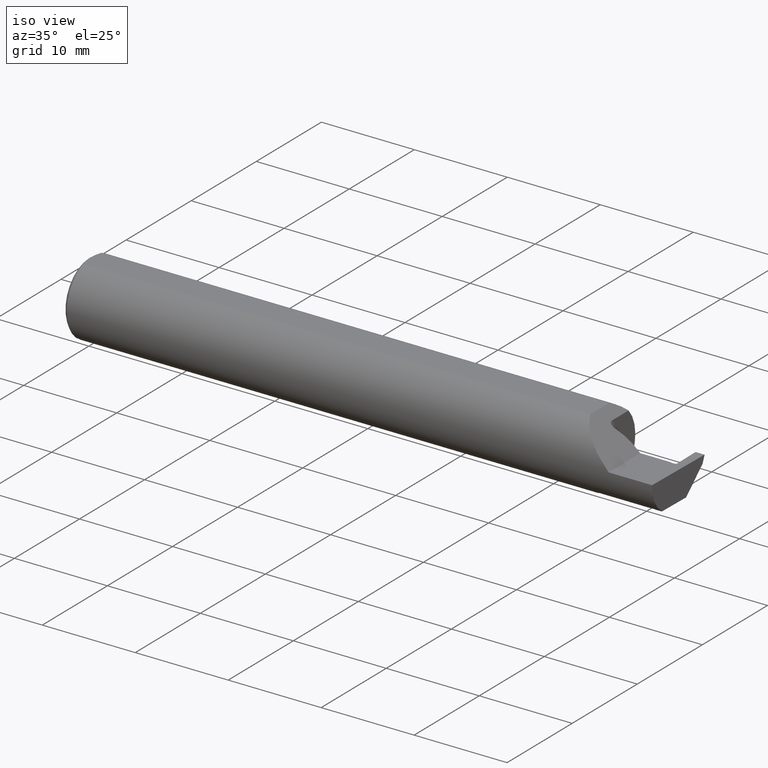
[diagram: clean part render]
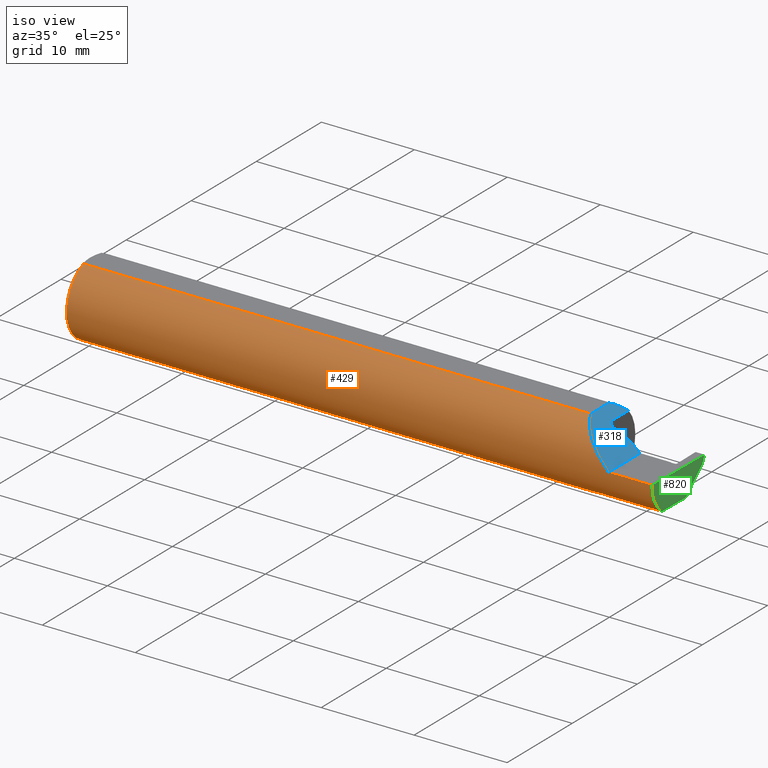
[diagram: same view with three faces highlighted in distinct colors, each labeled with its STEP entity id]
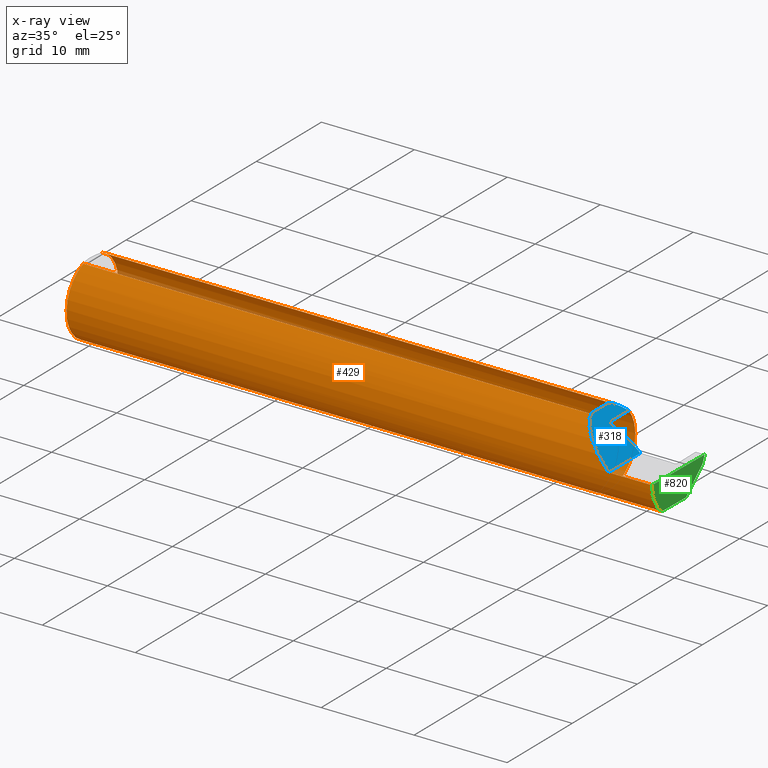
[diagram: x-ray of the same camera — body ghosted, the three highlighted faces saturated]
A machine part, iso view with three faces highlighted in distinct colors.
The next image is the same camera in x-ray (body ghosted, the three faces saturated) — at least one of them is partly hidden behind the body in this view.
Their STEP definitions:

[orange] entity #429 — the highlighted cylindrical surface (partial cylindrical patch) has radius 3.9649 mm, axis along (-1, -0, -0).
#6 =( BOUNDED_CURVE ( )  B_SPLINE_CURVE ( 3, ( #601, #239, #313, #317 ),
 .UNSPECIFIED., .F., .F. ) 
 B_SPLINE_CURVE_WITH_KNOTS ( ( 4, 4 ),
 ( 0.3598816721999159585, 0.8330178286033869117 ),
 .UNSPECIFIED. ) 
 CURVE ( )  GEOMETRIC_REPRESENTATION_ITEM ( )  RATIONAL_B_SPLINE_CURVE ( ( 1.000000000000000000, 0.9814320198864697753, 0.9814320198864697753, 1.000000000000000000 ) ) 
 REPRESENTATION_ITEM ( '' )  );
#13 = LINE ( 'NONE', #296, #246 ) ;
#16 = VERTEX_POINT ( 'NONE', #688 ) ;
#24 = CARTESIAN_POINT ( 'NONE',  ( 2.453282581884050462, -0.09605366783568212996, -0.1230484297883021605 ) ) ;
#26 = EDGE_CURVE ( 'NONE', #522, #341, #13, .T. ) ;
#27 = CIRCLE ( 'NONE', #427, 0.1560999999999999888 ) ;
#30 = B_SPLINE_CURVE_WITH_KNOTS ( 'NONE', 3,
 ( #395, #699, #935, #265, #793, #24, #488, #255, #322, #552 ),
 .UNSPECIFIED., .F., .F.,
 ( 4, 3, 3, 4 ),
 ( 0.000000000000000000, 9.512159278853818574E-05, 0.0002378039862949639675, 0.0003804863840084716435 ),
 .UNSPECIFIED. ) ;
#35 = LINE ( 'NONE', #926, #354 ) ;
#36 = CARTESIAN_POINT ( 'NONE',  ( 0.000000000000000000, 0.000000000000000000, 0.000000000000000000 ) ) ;
#49 = ORIENTED_EDGE ( 'NONE', *, *, #615, .T. ) ;
#52 = VERTEX_POINT ( 'NONE', #760 ) ;
#54 = CARTESIAN_POINT ( 'NONE',  ( 2.229999999999999982, -0.09360841750841744635, -0.1249186702281520206 ) ) ;
#67 =( BOUNDED_CURVE ( )  B_SPLINE_CURVE ( 3, ( #290, #437, #814, #510 ),
 .UNSPECIFIED., .F., .T. ) 
 B_SPLINE_CURVE_WITH_KNOTS ( ( 4, 4 ),
 ( 0.05521439950980804034, 0.9829226100289724100 ),
 .UNSPECIFIED. ) 
 CURVE ( )  GEOMETRIC_REPRESENTATION_ITEM ( )  RATIONAL_B_SPLINE_CURVE ( ( 1.000000000000000000, 0.9295565493311498395, 0.9295565493311498395, 1.000000000000000000 ) ) 
 REPRESENTATION_ITEM ( '' )  );
#90 = CARTESIAN_POINT ( 'NONE',  ( 0.01499999999999999771, 0.05497272050753900657, 0.1460999999999999799 ) ) ;
#93 = CARTESIAN_POINT ( 'NONE',  ( 2.163900000000000823, -0.05497272050753899270, 0.1460999999999999799 ) ) ;
#96 = ORIENTED_EDGE ( 'NONE', *, *, #26, .T. ) ;
#101 = CARTESIAN_POINT ( 'NONE',  ( 2.461870861435892621, -0.09646811579188417640, -0.1227237437389290392 ) ) ;
#108 = VERTEX_POINT ( 'NONE', #863 ) ;
#112 = ORIENTED_EDGE ( 'NONE', *, *, #594, .F. ) ;
#113 = DIRECTION ( 'NONE',  ( -1.000000000000000000, -0.000000000000000000, -0.000000000000000000 ) ) ;
#114 = CYLINDRICAL_SURFACE ( 'NONE', #603, 0.1560999999999999888 ) ;
#124 = CARTESIAN_POINT ( 'NONE',  ( 2.229999999999999982, -0.09360841750841744635, -0.1249186702281520206 ) ) ;
#126 = EDGE_LOOP ( 'NONE', ( #636, #131, #96, #950, #112, #360, #651, #551, #49, #194, #537, #917, #312, #876, #321 ) ) ;
#131 = ORIENTED_EDGE ( 'NONE', *, *, #300, .T. ) ;
#145 = DIRECTION ( 'NONE',  ( -1.000000000000000000, -0.000000000000000000, -0.000000000000000000 ) ) ;
#154 = VECTOR ( 'NONE', #380, 39.37007874015748143 ) ;
#159 = EDGE_CURVE ( 'NONE', #108, #337, #938, .T. ) ;
#164 = DIRECTION ( 'NONE',  ( 1.000000000000000000, 0.000000000000000000, 0.000000000000000000 ) ) ;
#168 = EDGE_CURVE ( 'NONE', #341, #16, #575, .T. ) ;
#174 = VERTEX_POINT ( 'NONE', #197 ) ;
#187 = FACE_OUTER_BOUND ( 'NONE', #126, .T. ) ;
#194 = ORIENTED_EDGE ( 'NONE', *, *, #159, .F. ) ;
#197 = CARTESIAN_POINT ( 'NONE',  ( 2.492408115719126460, -0.09360841750841747411, -0.1249186702281520206 ) ) ;
#203 = CARTESIAN_POINT ( 'NONE',  ( 2.205000000000000071, 0.1155084845368506419, 0.1050000000000006206 ) ) ;
#207 = CARTESIAN_POINT ( 'NONE',  ( 2.205382848617945424, -0.06353102748571685943, -0.1426585117573466455 ) ) ;
#211 = CARTESIAN_POINT ( 'NONE',  ( 2.204999999999998295, -0.05933838711026685753, -0.1444554604868196757 ) ) ;
#239 = CARTESIAN_POINT ( 'NONE',  ( 2.172651720989708490, 0.07823201029329630851, 0.1373482790102923123 ) ) ;
#241 = CARTESIAN_POINT ( 'NONE',  ( 2.310000000000000053, -0.1560999999999999888, 2.326828918379970872E-17 ) ) ;
#246 = VECTOR ( 'NONE', #145, 39.37007874015748143 ) ;
#250 = VERTEX_POINT ( 'NONE', #393 ) ;
#255 = CARTESIAN_POINT ( 'NONE',  ( 2.449544681533677881, -0.09587258477452799410, -0.1231895720696601915 ) ) ;
#256 = CARTESIAN_POINT ( 'NONE',  ( 2.494588929872255001, -0.1561000000000000443, 0.000000000000000000 ) ) ;
#257 = EDGE_CURVE ( 'NONE', #618, #772, #27, .T. ) ;
#265 = CARTESIAN_POINT ( 'NONE',  ( 2.457020500426053911, -0.09623428318624049904, -0.1229071712294707436 ) ) ;
#271 = DIRECTION ( 'NONE',  ( 0.000000000000000000, 0.000000000000000000, -1.000000000000000000 ) ) ;
#280 = CARTESIAN_POINT ( 'NONE',  ( 2.163900000000000823, 0.05497272050753900657, 0.1460999999999999799 ) ) ;
#290 = CARTESIAN_POINT ( 'NONE',  ( 2.492408115719126460, -0.09360841750841747411, -0.1249186702281520206 ) ) ;
#296 = CARTESIAN_POINT ( 'NONE',  ( 3.749399456654646757E-32, -0.1560999999999999888, 3.061616997868384127E-16 ) ) ;
#300 = EDGE_CURVE ( 'NONE', #174, #522, #67, .T. ) ;
#312 = ORIENTED_EDGE ( 'NONE', *, *, #606, .F. ) ;
#313 = CARTESIAN_POINT ( 'NONE',  ( 2.186610915026993229, 0.09879236251423235970, 0.1233890849730072958 ) ) ;
#317 = CARTESIAN_POINT ( 'NONE',  ( 2.205000000000000071, 0.1155084845368506419, 0.1050000000000006206 ) ) ;
#321 = ORIENTED_EDGE ( 'NONE', *, *, #853, .F. ) ;
#322 = CARTESIAN_POINT ( 'NONE',  ( 2.447675737396382001, -0.09578188742118470822, -0.1232601041107730250 ) ) ;
#337 = VERTEX_POINT ( 'NONE', #203 ) ;
#338 = LINE ( 'NONE', #941, #655 ) ;
#341 = VERTEX_POINT ( 'NONE', #742 ) ;
#354 = VECTOR ( 'NONE', #113, 39.37007874015748143 ) ;
#357 = CARTESIAN_POINT ( 'NONE',  ( 2.225298065053173513, -0.09360841750841726594, -0.1249186702281522426 ) ) ;
#358 = CARTESIAN_POINT ( 'NONE',  ( 0.01499999999999999944, 0.000000000000000000, 0.000000000000000000 ) ) ;
#360 = ORIENTED_EDGE ( 'NONE', *, *, #776, .F. ) ;
#380 = DIRECTION ( 'NONE',  ( -1.000000000000000000, -0.000000000000000000, -0.000000000000000000 ) ) ;
#381 = B_SPLINE_CURVE_WITH_KNOTS ( 'NONE', 3,
 ( #474, #798, #398, #783, #101, #706 ),
 .UNSPECIFIED., .F., .F.,
 ( 4, 2, 4 ),
 ( 0.0002236889353495287230, 0.0003060019729275918168, 0.0003883150105056549107 ),
 .UNSPECIFIED. ) ;
#393 = CARTESIAN_POINT ( 'NONE',  ( 2.460758433086303043, -0.09641453430756345699, -0.1227658241297457653 ) ) ;
#395 = CARTESIAN_POINT ( 'NONE',  ( 2.460758433086303043, -0.09641453430756345699, -0.1227658241297457653 ) ) ;
#398 = CARTESIAN_POINT ( 'NONE',  ( 2.464692907515818820, -0.09506543444703732804, -0.1238152809981270669 ) ) ;
#408 = CARTESIAN_POINT ( 'NONE',  ( 2.465920927715513855, -0.09360841750841744635, -0.1249186702281520345 ) ) ;
#409 = CARTESIAN_POINT ( 'NONE',  ( 2.187562140406902333, -0.1178591609371013593, 0.1224378595930983027 ) ) ;
#410 = VERTEX_POINT ( 'NONE', #124 ) ;
#426 = LINE ( 'NONE', #513, #891 ) ;
#427 = AXIS2_PLACEMENT_3D ( 'NONE', #358, #428, #514 ) ;
#428 = DIRECTION ( 'NONE',  ( -1.000000000000000000, -0.000000000000000000, -0.000000000000000000 ) ) ;
#429 = ADVANCED_FACE ( 'NONE', ( #187 ), #114, .T. ) ;
#437 = CARTESIAN_POINT ( 'NONE',  ( 2.492495113650786021, -0.1336908980339254205, -0.09488266708345007017 ) ) ;
#448 = CARTESIAN_POINT ( 'NONE',  ( 2.444421270371394783, -0.09360841750841741860, -0.1249186702281520206 ) ) ;
#474 = CARTESIAN_POINT ( 'NONE',  ( 2.465920927715513855, -0.09360841750841744635, -0.1249186702281520345 ) ) ;
#487 = VERTEX_POINT ( 'NONE', #408 ) ;
#488 = CARTESIAN_POINT ( 'NONE',  ( 2.451413631736417464, -0.09596312630643989705, -0.1231190009279407582 ) ) ;
#499 = CARTESIAN_POINT ( 'NONE',  ( 2.205000000000000515, -0.05502817059483720158, -0.1460791239054557156 ) ) ;
#502 = CARTESIAN_POINT ( 'NONE',  ( 2.444421270371394783, -0.09360841750841741860, -0.1249186702281520206 ) ) ;
#510 = CARTESIAN_POINT ( 'NONE',  ( 2.494588929872255001, -0.1561000000000000443, 0.000000000000000000 ) ) ;
#513 = CARTESIAN_POINT ( 'NONE',  ( 0.000000000000000000, -0.05497272050753900657, 0.1460999999999999799 ) ) ;
#514 = DIRECTION ( 'NONE',  ( 0.000000000000000000, 0.000000000000000000, 1.000000000000000000 ) ) ;
#522 = VERTEX_POINT ( 'NONE', #256 ) ;
#524 = CIRCLE ( 'NONE', #704, 0.1560999999999999888 ) ;
#537 = ORIENTED_EDGE ( 'NONE', *, *, #550, .F. ) ;
#539 = CARTESIAN_POINT ( 'NONE',  ( 2.242809217309687853, -0.1561000000000000165, 0.06719078269031264483 ) ) ;
#547 = DIRECTION ( 'NONE',  ( -1.000000000000000000, -0.000000000000000000, -0.000000000000000000 ) ) ;
#550 = EDGE_CURVE ( 'NONE', #410, #108, #949, .T. ) ;
#551 = ORIENTED_EDGE ( 'NONE', *, *, #731, .F. ) ;
#552 = CARTESIAN_POINT ( 'NONE',  ( 2.445806799314936164, -0.09569103450145266532, -0.1233305960256488032 ) ) ;
#556 = AXIS2_PLACEMENT_3D ( 'NONE', #649, #164, #271 ) ;
#568 = CARTESIAN_POINT ( 'NONE',  ( 0.01499999999999999944, -0.05497272050753900657, 0.1460999999999999799 ) ) ;
#573 = CARTESIAN_POINT ( 'NONE',  ( 2.445806799314936164, -0.09569103450145266532, -0.1233305960256488032 ) ) ;
#575 =( BOUNDED_CURVE ( )  B_SPLINE_CURVE ( 3, ( #241, #539, #409, #93 ),
 .UNSPECIFIED., .F., .F. ) 
 B_SPLINE_CURVE_WITH_KNOTS ( ( 4, 4 ),
 ( 4.712388980384689674, 5.923303634979670385 ),
 .UNSPECIFIED. ) 
 CURVE ( )  GEOMETRIC_REPRESENTATION_ITEM ( )  RATIONAL_B_SPLINE_CURVE ( ( 1.000000000000000000, 0.8814946008038386793, 0.8814946008038386793, 1.000000000000000000 ) ) 
 REPRESENTATION_ITEM ( '' )  );
#594 = EDGE_CURVE ( 'NONE', #807, #16, #426, .T. ) ;
#596 = VERTEX_POINT ( 'NONE', #280 ) ;
#601 = CARTESIAN_POINT ( 'NONE',  ( 2.163900000000000823, 0.05497272050753900657, 0.1460999999999999799 ) ) ;
#603 = AXIS2_PLACEMENT_3D ( 'NONE', #36, #805, #936 ) ;
#606 = EDGE_CURVE ( 'NONE', #52, #859, #963, .T. ) ;
#615 = EDGE_CURVE ( 'NONE', #596, #337, #6, .T. ) ;
#618 = VERTEX_POINT ( 'NONE', #90 ) ;
#636 = ORIENTED_EDGE ( 'NONE', *, *, #928, .F. ) ;
#649 = CARTESIAN_POINT ( 'NONE',  ( 2.205000000000000071, 0.000000000000000000, 0.000000000000000000 ) ) ;
#651 = ORIENTED_EDGE ( 'NONE', *, *, #257, .F. ) ;
#655 = VECTOR ( 'NONE', #547, 39.37007874015748143 ) ;
#660 = CARTESIAN_POINT ( 'NONE',  ( 2.208298581922916171, -0.07564908586346462405, -0.1366096273808739270 ) ) ;
#664 = CARTESIAN_POINT ( 'NONE',  ( 2.207026367118634536, -0.07167964287766651066, -0.1387431844349195920 ) ) ;
#688 = CARTESIAN_POINT ( 'NONE',  ( 2.163900000000000823, -0.05497272050753899270, 0.1460999999999999799 ) ) ;
#699 = CARTESIAN_POINT ( 'NONE',  ( 2.459512452820178385, -0.09635452000985572640, -0.1228129565512181276 ) ) ;
#704 = AXIS2_PLACEMENT_3D ( 'NONE', #867, #778, #720 ) ;
#706 = CARTESIAN_POINT ( 'NONE',  ( 2.460758433086303043, -0.09641453430756345699, -0.1227658241297457653 ) ) ;
#720 = DIRECTION ( 'NONE',  ( 0.000000000000000000, 0.000000000000000000, 1.000000000000000000 ) ) ;
#731 = EDGE_CURVE ( 'NONE', #596, #618, #338, .T. ) ;
#737 = CARTESIAN_POINT ( 'NONE',  ( 2.444883274121979255, -0.09430675028159220263, -0.1243953711434614834 ) ) ;
#742 = CARTESIAN_POINT ( 'NONE',  ( 2.310000000000000053, -0.1560999999999999888, 2.326828918379970872E-17 ) ) ;
#746 = DIRECTION ( 'NONE',  ( 1.000000000000000000, 0.000000000000000000, 0.000000000000000000 ) ) ;
#760 = CARTESIAN_POINT ( 'NONE',  ( 2.445806799314936164, -0.09569103450145266532, -0.1233305960256488032 ) ) ;
#772 = VERTEX_POINT ( 'NONE', #855 ) ;
#776 = EDGE_CURVE ( 'NONE', #772, #807, #524, .T. ) ;
#778 = DIRECTION ( 'NONE',  ( -1.000000000000000000, -0.000000000000000000, -0.000000000000000000 ) ) ;
#783 = CARTESIAN_POINT ( 'NONE',  ( 2.462958620952170552, -0.09612681111944285095, -0.1229930763061729410 ) ) ;
#793 = CARTESIAN_POINT ( 'NONE',  ( 2.455151538110904585, -0.09614405354417178418, -0.1229778195475450392 ) ) ;
#798 = CARTESIAN_POINT ( 'NONE',  ( 2.465372530024500630, -0.09436784564007158482, -0.1243495890372808693 ) ) ;
#805 = DIRECTION ( 'NONE',  ( -1.000000000000000000, -0.000000000000000000, -0.000000000000000000 ) ) ;
#807 = VERTEX_POINT ( 'NONE', #568 ) ;
#809 = CARTESIAN_POINT ( 'NONE',  ( 2.214390565699350777, -0.08631243322371086324, -0.1301077001157307789 ) ) ;
#814 = CARTESIAN_POINT ( 'NONE',  ( 2.493277140361873201, -0.1561000000000000165, -0.05008759057876776416 ) ) ;
#818 = CARTESIAN_POINT ( 'NONE',  ( 2.220963332554101832, -0.09167217634395832815, -0.1263885352504913462 ) ) ;
#829 = EDGE_CURVE ( 'NONE', #250, #52, #30, .T. ) ;
#840 = LINE ( 'NONE', #908, #154 ) ;
#844 = EDGE_CURVE ( 'NONE', #859, #410, #35, .T. ) ;
#853 = EDGE_CURVE ( 'NONE', #487, #250, #381, .T. ) ;
#855 = CARTESIAN_POINT ( 'NONE',  ( 0.01499999999999999944, 0.000000000000000000, -0.1560999999999999888 ) ) ;
#859 = VERTEX_POINT ( 'NONE', #502 ) ;
#863 = CARTESIAN_POINT ( 'NONE',  ( 2.205000000000000515, -0.05502817059483720158, -0.1460791239054557156 ) ) ;
#867 = CARTESIAN_POINT ( 'NONE',  ( 0.01499999999999999944, 0.000000000000000000, 0.000000000000000000 ) ) ;
#876 = ORIENTED_EDGE ( 'NONE', *, *, #829, .F. ) ;
#879 = CARTESIAN_POINT ( 'NONE',  ( 2.445345111343429245, -0.09500096213625149055, -0.1238660165995770779 ) ) ;
#891 = VECTOR ( 'NONE', #746, 39.37007874015748143 ) ;
#896 = CARTESIAN_POINT ( 'NONE',  ( 2.211963077135974842, -0.08291057444783002384, -0.1323284214741863862 ) ) ;
#908 = CARTESIAN_POINT ( 'NONE',  ( 2.343250000000000277, -0.09360841750841747411, -0.1249186702281520206 ) ) ;
#917 = ORIENTED_EDGE ( 'NONE', *, *, #844, .F. ) ;
#926 = CARTESIAN_POINT ( 'NONE',  ( 2.343250000000000277, -0.09360841750841747411, -0.1249186702281520206 ) ) ;
#928 = EDGE_CURVE ( 'NONE', #174, #487, #840, .T. ) ;
#935 = CARTESIAN_POINT ( 'NONE',  ( 2.458266475267615991, -0.09629443627925335369, -0.1228600723520853061 ) ) ;
#936 = DIRECTION ( 'NONE',  ( 0.000000000000000000, 0.000000000000000000, 1.000000000000000000 ) ) ;
#938 = CIRCLE ( 'NONE', #556, 0.1560999999999999888 ) ;
#941 = CARTESIAN_POINT ( 'NONE',  ( 0.000000000000000000, 0.05497272050753900657, 0.1460999999999999799 ) ) ;
#949 = B_SPLINE_CURVE_WITH_KNOTS ( 'NONE', 3,
 ( #54, #357, #818, #809, #896, #660, #664, #207, #211, #499 ),
 .UNSPECIFIED., .F., .F.,
 ( 4, 2, 2, 2, 4 ),
 ( 1.958690481313001990E-07, 0.0003511029445248094400, 0.0007020100200014876444, 0.001052917095478166391, 0.001403824170954845246 ),
 .UNSPECIFIED. ) ;
#950 = ORIENTED_EDGE ( 'NONE', *, *, #168, .T. ) ;
#963 = B_SPLINE_CURVE_WITH_KNOTS ( 'NONE', 3,
 ( #573, #879, #737, #448 ),
 .UNSPECIFIED., .F., .F.,
 ( 4, 4 ),
 ( 5.293749646857445613E-18, 7.520689195611962553E-05 ),
 .UNSPECIFIED. ) ;

[blue] entity #318 — the highlighted planar face has unit normal (-0.7071, 0, -0.7071).
#6 =( BOUNDED_CURVE ( )  B_SPLINE_CURVE ( 3, ( #601, #239, #313, #317 ),
 .UNSPECIFIED., .F., .F. ) 
 B_SPLINE_CURVE_WITH_KNOTS ( ( 4, 4 ),
 ( 0.3598816721999159585, 0.8330178286033869117 ),
 .UNSPECIFIED. ) 
 CURVE ( )  GEOMETRIC_REPRESENTATION_ITEM ( )  RATIONAL_B_SPLINE_CURVE ( ( 1.000000000000000000, 0.9814320198864697753, 0.9814320198864697753, 1.000000000000000000 ) ) 
 REPRESENTATION_ITEM ( '' )  );
#16 = VERTEX_POINT ( 'NONE', #688 ) ;
#17 = DIRECTION ( 'NONE',  ( -0.000000000000000000, 1.000000000000000000, -0.000000000000000000 ) ) ;
#70 = ORIENTED_EDGE ( 'NONE', *, *, #725, .T. ) ;
#87 = DIRECTION ( 'NONE',  ( 0.000000000000000000, -1.000000000000000000, 0.000000000000000000 ) ) ;
#93 = CARTESIAN_POINT ( 'NONE',  ( 2.163900000000000823, -0.05497272050753899270, 0.1460999999999999799 ) ) ;
#95 = EDGE_CURVE ( 'NONE', #337, #238, #806, .T. ) ;
#120 = CARTESIAN_POINT ( 'NONE',  ( 2.216678479843920968, -0.0007234681444185053724, 0.09332152015607918238 ) ) ;
#139 = PLANE ( 'NONE',  #351 ) ;
#144 = EDGE_CURVE ( 'NONE', #238, #751, #149, .T. ) ;
#149 = B_SPLINE_CURVE_WITH_KNOTS ( 'NONE', 3,
 ( #560, #485, #189, #914, #722, #419, #335, #120, #631, #389, #169, #795 ),
 .UNSPECIFIED., .F., .F.,
 ( 4, 2, 2, 2, 2, 4 ),
 ( 0.001292954658829955240, 0.001599031819399232817, 0.001752070399683868136, 0.001905108979968503456, 0.002211186140537772793, 0.002517263301107042130 ),
 .UNSPECIFIED. ) ;
#168 = EDGE_CURVE ( 'NONE', #341, #16, #575, .T. ) ;
#169 = CARTESIAN_POINT ( 'NONE',  ( 2.227522175903073887, 0.004883017638651836190, 0.08247782409692715200 ) ) ;
#185 = ORIENTED_EDGE ( 'NONE', *, *, #615, .F. ) ;
#189 = CARTESIAN_POINT ( 'NONE',  ( 2.205470178925820868, 0.009801298193312112800, 0.1045298210741795603 ) ) ;
#198 = VECTOR ( 'NONE', #87, 39.37007874015748143 ) ;
#203 = CARTESIAN_POINT ( 'NONE',  ( 2.205000000000000071, 0.1155084845368506419, 0.1050000000000006206 ) ) ;
#238 = VERTEX_POINT ( 'NONE', #611 ) ;
#239 = CARTESIAN_POINT ( 'NONE',  ( 2.172651720989708490, 0.07823201029329630851, 0.1373482790102923123 ) ) ;
#241 = CARTESIAN_POINT ( 'NONE',  ( 2.310000000000000053, -0.1560999999999999888, 2.326828918379970872E-17 ) ) ;
#254 = ORIENTED_EDGE ( 'NONE', *, *, #650, .F. ) ;
#280 = CARTESIAN_POINT ( 'NONE',  ( 2.163900000000000823, 0.05497272050753900657, 0.1460999999999999799 ) ) ;
#303 = CARTESIAN_POINT ( 'NONE',  ( 2.310000000000000053, -0.2000000000000000111, 2.326828918379970872E-17 ) ) ;
#311 = CARTESIAN_POINT ( 'NONE',  ( 2.163900000000000823, -0.1561000000000000165, 0.1460999999999999799 ) ) ;
#313 = CARTESIAN_POINT ( 'NONE',  ( 2.186610915026993229, 0.09879236251423235970, 0.1233890849730072958 ) ) ;
#317 = CARTESIAN_POINT ( 'NONE',  ( 2.205000000000000071, 0.1155084845368506419, 0.1050000000000006206 ) ) ;
#318 = ADVANCED_FACE ( 'NONE', ( #657 ), #139, .F. ) ;
#332 = ORIENTED_EDGE ( 'NONE', *, *, #912, .T. ) ;
#335 = CARTESIAN_POINT ( 'NONE',  ( 2.212405726183429788, -8.261176361356368681E-06, 0.09759427381657130585 ) ) ;
#337 = VERTEX_POINT ( 'NONE', #203 ) ;
#341 = VERTEX_POINT ( 'NONE', #742 ) ;
#351 = AXIS2_PLACEMENT_3D ( 'NONE', #423, #732, #819 ) ;
#372 = CARTESIAN_POINT ( 'NONE',  ( 2.280465398849123471, 0.03590000000000002217, 0.02953460115087711002 ) ) ;
#389 = CARTESIAN_POINT ( 'NONE',  ( 2.224970440424900886, 0.003042870002762883275, 0.08502955957509952811 ) ) ;
#399 = VECTOR ( 'NONE', #17, 39.37007874015748143 ) ;
#409 = CARTESIAN_POINT ( 'NONE',  ( 2.187562140406902333, -0.1178591609371013593, 0.1224378595930983027 ) ) ;
#411 = CARTESIAN_POINT ( 'NONE',  ( 2.229999999999999982, 0.006946863561492249567, 0.08000000000000061229 ) ) ;
#419 = CARTESIAN_POINT ( 'NONE',  ( 2.210997640143628651, 0.0006487063506430517908, 0.09900235985637161062 ) ) ;
#423 = CARTESIAN_POINT ( 'NONE',  ( 2.310000000000000053, -0.2000000000000000111, 2.326828918379970872E-17 ) ) ;
#452 = DIRECTION ( 'NONE',  ( 0.000000000000000000, -1.000000000000000000, 0.000000000000000000 ) ) ;
#453 = CARTESIAN_POINT ( 'NONE',  ( 2.310000000000000053, 0.03589999999999998748, 2.326828918379970872E-17 ) ) ;
#457 = CARTESIAN_POINT ( 'NONE',  ( 2.229999999999999982, 0.006946863561492249567, 0.08000000000000061229 ) ) ;
#485 = CARTESIAN_POINT ( 'NONE',  ( 2.205000000000000071, 0.01394011811222969736, 0.1050000000000005373 ) ) ;
#530 = LINE ( 'NONE', #311, #656 ) ;
#539 = CARTESIAN_POINT ( 'NONE',  ( 2.242809217309687853, -0.1561000000000000165, 0.06719078269031264483 ) ) ;
#560 = CARTESIAN_POINT ( 'NONE',  ( 2.205000000000000515, 0.01802142642814216072, 0.1050000000000006206 ) ) ;
#575 =( BOUNDED_CURVE ( )  B_SPLINE_CURVE ( 3, ( #241, #539, #409, #93 ),
 .UNSPECIFIED., .F., .F. ) 
 B_SPLINE_CURVE_WITH_KNOTS ( ( 4, 4 ),
 ( 4.712388980384689674, 5.923303634979670385 ),
 .UNSPECIFIED. ) 
 CURVE ( )  GEOMETRIC_REPRESENTATION_ITEM ( )  RATIONAL_B_SPLINE_CURVE ( ( 1.000000000000000000, 0.8814946008038386793, 0.8814946008038386793, 1.000000000000000000 ) ) 
 REPRESENTATION_ITEM ( '' )  );
#596 = VERTEX_POINT ( 'NONE', #280 ) ;
#601 = CARTESIAN_POINT ( 'NONE',  ( 2.163900000000000823, 0.05497272050753900657, 0.1460999999999999799 ) ) ;
#611 = CARTESIAN_POINT ( 'NONE',  ( 2.205000000000000515, 0.01802142642814216072, 0.1050000000000006206 ) ) ;
#615 = EDGE_CURVE ( 'NONE', #596, #337, #6, .T. ) ;
#631 = CARTESIAN_POINT ( 'NONE',  ( 2.219569099842571447, 0.0002640992857225947336, 0.09043090015742988319 ) ) ;
#650 = EDGE_CURVE ( 'NONE', #751, #777, #679, .T. ) ;
#656 = VECTOR ( 'NONE', #452, 39.37007874015748143 ) ;
#657 = FACE_OUTER_BOUND ( 'NONE', #797, .T. ) ;
#678 = LINE ( 'NONE', #303, #399 ) ;
#679 =( BOUNDED_CURVE ( )  B_SPLINE_CURVE ( 3, ( #457, #752, #372, #453 ),
 .UNSPECIFIED., .F., .F. ) 
 B_SPLINE_CURVE_WITH_KNOTS ( ( 4, 4 ),
 ( 0.8762980611683343080, 1.570796326794896558 ),
 .UNSPECIFIED. ) 
 CURVE ( )  GEOMETRIC_REPRESENTATION_ITEM ( )  RATIONAL_B_SPLINE_CURVE ( ( 1.000000000000000000, 0.9602082824955224805, 0.9602082824955224805, 1.000000000000000000 ) ) 
 REPRESENTATION_ITEM ( '' )  );
#688 = CARTESIAN_POINT ( 'NONE',  ( 2.163900000000000823, -0.05497272050753899270, 0.1460999999999999799 ) ) ;
#696 = CARTESIAN_POINT ( 'NONE',  ( 2.205000000000000071, -0.2000000000000000111, 0.1050000000000006206 ) ) ;
#709 = ORIENTED_EDGE ( 'NONE', *, *, #168, .F. ) ;
#722 = CARTESIAN_POINT ( 'NONE',  ( 2.208597677059192854, 0.002903333528360323504, 0.1014023229408076571 ) ) ;
#723 = ORIENTED_EDGE ( 'NONE', *, *, #95, .F. ) ;
#725 = EDGE_CURVE ( 'NONE', #341, #777, #678, .T. ) ;
#732 = DIRECTION ( 'NONE',  ( -0.7071067811865492381, 0.000000000000000000, -0.7071067811865459074 ) ) ;
#742 = CARTESIAN_POINT ( 'NONE',  ( 2.310000000000000053, -0.1560999999999999888, 2.326828918379970872E-17 ) ) ;
#751 = VERTEX_POINT ( 'NONE', #411 ) ;
#752 = CARTESIAN_POINT ( 'NONE',  ( 2.252693646456652043, 0.02584900829805373418, 0.05730635354334956411 ) ) ;
#777 = VERTEX_POINT ( 'NONE', #860 ) ;
#795 = CARTESIAN_POINT ( 'NONE',  ( 2.229999999999999982, 0.006946863561492249567, 0.08000000000000061229 ) ) ;
#797 = EDGE_LOOP ( 'NONE', ( #723, #185, #332, #709, #70, #254, #925 ) ) ;
#806 = LINE ( 'NONE', #696, #198 ) ;
#819 = DIRECTION ( 'NONE',  ( -0.7071067811865459074, 0.000000000000000000, 0.7071067811865492381 ) ) ;
#860 = CARTESIAN_POINT ( 'NONE',  ( 2.310000000000000053, 0.03589999999999998748, 2.326828918379970872E-17 ) ) ;
#912 = EDGE_CURVE ( 'NONE', #596, #16, #530, .T. ) ;
#914 = CARTESIAN_POINT ( 'NONE',  ( 2.207617573287391277, 0.004485170111976941737, 0.1023824267126085680 ) ) ;
#925 = ORIENTED_EDGE ( 'NONE', *, *, #144, .F. ) ;

[green] entity #820 — the highlighted planar face has unit normal (-0.9995, 0.0174, 0.0262).
#43 = EDGE_CURVE ( 'NONE', #787, #430, #899, .T. ) ;
#67 =( BOUNDED_CURVE ( )  B_SPLINE_CURVE ( 3, ( #290, #437, #814, #510 ),
 .UNSPECIFIED., .F., .T. ) 
 B_SPLINE_CURVE_WITH_KNOTS ( ( 4, 4 ),
 ( 0.05521439950980804034, 0.9829226100289724100 ),
 .UNSPECIFIED. ) 
 CURVE ( )  GEOMETRIC_REPRESENTATION_ITEM ( )  RATIONAL_B_SPLINE_CURVE ( ( 1.000000000000000000, 0.9295565493311498395, 0.9295565493311498395, 1.000000000000000000 ) ) 
 REPRESENTATION_ITEM ( '' )  );
#79 = LINE ( 'NONE', #684, #135 ) ;
#97 = DIRECTION ( 'NONE',  ( 0.02618093305822682959, 0.000000000000000000, 0.9996572206232497981 ) ) ;
#105 = AXIS2_PLACEMENT_3D ( 'NONE', #483, #175, #97 ) ;
#109 = PLANE ( 'NONE',  #105 ) ;
#135 = VECTOR ( 'NONE', #527, 39.37007874015748143 ) ;
#174 = VERTEX_POINT ( 'NONE', #197 ) ;
#175 = DIRECTION ( 'NONE',  ( -0.9995050723230146650, 0.01744642593347468448, 0.02617694830787320806 ) ) ;
#191 = CARTESIAN_POINT ( 'NONE',  ( 2.500000000000000000, 0.1539000000000000090, 0.000000000000000000 ) ) ;
#197 = CARTESIAN_POINT ( 'NONE',  ( 2.492408115719126460, -0.09360841750841747411, -0.1249186702281520206 ) ) ;
#200 = ORIENTED_EDGE ( 'NONE', *, *, #621, .T. ) ;
#205 = ORIENTED_EDGE ( 'NONE', *, *, #960, .T. ) ;
#237 = CARTESIAN_POINT ( 'NONE',  ( 2.492484680420020027, -0.08910000000000001252, -0.1250000000000000000 ) ) ;
#256 = CARTESIAN_POINT ( 'NONE',  ( 2.494588929872255001, -0.1561000000000000443, 0.000000000000000000 ) ) ;
#269 = FACE_OUTER_BOUND ( 'NONE', #278, .T. ) ;
#278 = EDGE_LOOP ( 'NONE', ( #205, #473, #733, #658, #200, #541 ) ) ;
#290 = CARTESIAN_POINT ( 'NONE',  ( 2.492408115719126460, -0.09360841750841747411, -0.1249186702281520206 ) ) ;
#295 = DIRECTION ( 'NONE',  ( -0.03084697155452407330, -0.7067702824630920366, -0.7067702824630894831 ) ) ;
#297 = CARTESIAN_POINT ( 'NONE',  ( 2.492458441733171881, -0.09060321336276837279, -0.1250000000000000278 ) ) ;
#300 = EDGE_CURVE ( 'NONE', #174, #522, #67, .T. ) ;
#325 = CARTESIAN_POINT ( 'NONE',  ( 2.492484680420020027, -0.08910000000000001252, -0.1250000000000000000 ) ) ;
#330 = EDGE_CURVE ( 'NONE', #430, #394, #500, .T. ) ;
#394 = VERTEX_POINT ( 'NONE', #620 ) ;
#418 = DIRECTION ( 'NONE',  ( -0.01745240643727716257, -0.9998476951563912696, 1.869448656733061669E-16 ) ) ;
#430 = VERTEX_POINT ( 'NONE', #856 ) ;
#433 = CARTESIAN_POINT ( 'NONE',  ( 2.498907590953288960, 0.1410674343035965006, -0.03315840968442382991 ) ) ;
#437 = CARTESIAN_POINT ( 'NONE',  ( 2.492495113650786021, -0.1336908980339254205, -0.09488266708345007017 ) ) ;
#472 = EDGE_CURVE ( 'NONE', #394, #506, #868, .T. ) ;
#473 = ORIENTED_EDGE ( 'NONE', *, *, #472, .F. ) ;
#483 = CARTESIAN_POINT ( 'NONE',  ( 2.500000000000000000, 0.1539000000000000090, 0.000000000000000000 ) ) ;
#500 = LINE ( 'NONE', #433, #905 ) ;
#506 = VERTEX_POINT ( 'NONE', #325 ) ;
#510 = CARTESIAN_POINT ( 'NONE',  ( 2.494588929872255001, -0.1561000000000000443, 0.000000000000000000 ) ) ;
#520 = DIRECTION ( 'NONE',  ( -0.03043175897092292859, -0.3254173665140246419, -0.9450806556146477133 ) ) ;
#522 = VERTEX_POINT ( 'NONE', #256 ) ;
#527 = DIRECTION ( 'NONE',  ( -0.01745240643727716603, -0.9998476951563912696, 0.000000000000000000 ) ) ;
#541 = ORIENTED_EDGE ( 'NONE', *, *, #300, .F. ) ;
#608 = CARTESIAN_POINT ( 'NONE',  ( 2.499907390804593899, 0.1529096977137292535, -0.002876046671974680051 ) ) ;
#609 = CARTESIAN_POINT ( 'NONE',  ( 2.492408115719126460, -0.09360841750841747411, -0.1249186702281520206 ) ) ;
#616 = VECTOR ( 'NONE', #520, 39.37007874015748854 ) ;
#620 = CARTESIAN_POINT ( 'NONE',  ( 2.494899167008080454, 0.04922584398801997663, -0.1250000000000000278 ) ) ;
#621 = EDGE_CURVE ( 'NONE', #787, #522, #79, .T. ) ;
#626 = CARTESIAN_POINT ( 'NONE',  ( 2.495673289801201733, 0.09357530910345747410, -0.1250000000000000278 ) ) ;
#658 = ORIENTED_EDGE ( 'NONE', *, *, #43, .F. ) ;
#684 = CARTESIAN_POINT ( 'NONE',  ( 2.500000000000000000, 0.1539000000000000090, 0.000000000000000000 ) ) ;
#733 = ORIENTED_EDGE ( 'NONE', *, *, #330, .F. ) ;
#736 = VECTOR ( 'NONE', #418, 39.37007874015748143 ) ;
#780 =( BOUNDED_CURVE ( )  B_SPLINE_CURVE ( 3, ( #609, #911, #297, #237 ),
 .UNSPECIFIED., .F., .F. ) 
 B_SPLINE_CURVE_WITH_KNOTS ( ( 4, 4 ),
 ( 0.5517985523994612951, 0.5878737167659243701 ),
 .UNSPECIFIED. ) 
 CURVE ( )  GEOMETRIC_REPRESENTATION_ITEM ( )  RATIONAL_B_SPLINE_CURVE ( ( 1.000000000000000000, 0.9998915514833921492, 0.9998915514833921492, 1.000000000000000000 ) ) 
 REPRESENTATION_ITEM ( '' )  );
#787 = VERTEX_POINT ( 'NONE', #191 ) ;
#814 = CARTESIAN_POINT ( 'NONE',  ( 2.493277140361873201, -0.1561000000000000165, -0.05008759057876776416 ) ) ;
#820 = ADVANCED_FACE ( 'NONE', ( #269 ), #109, .F. ) ;
#856 = CARTESIAN_POINT ( 'NONE',  ( 2.499001794690755673, 0.1432258439880203515, -0.03099999999999999978 ) ) ;
#868 = LINE ( 'NONE', #626, #736 ) ;
#899 = LINE ( 'NONE', #608, #616 ) ;
#905 = VECTOR ( 'NONE', #295, 39.37007874015748854 ) ;
#911 = CARTESIAN_POINT ( 'NONE',  ( 2.492432917398131220, -0.09210618219364773152, -0.1249728871357007887 ) ) ;
#960 = EDGE_CURVE ( 'NONE', #174, #506, #780, .T. ) ;